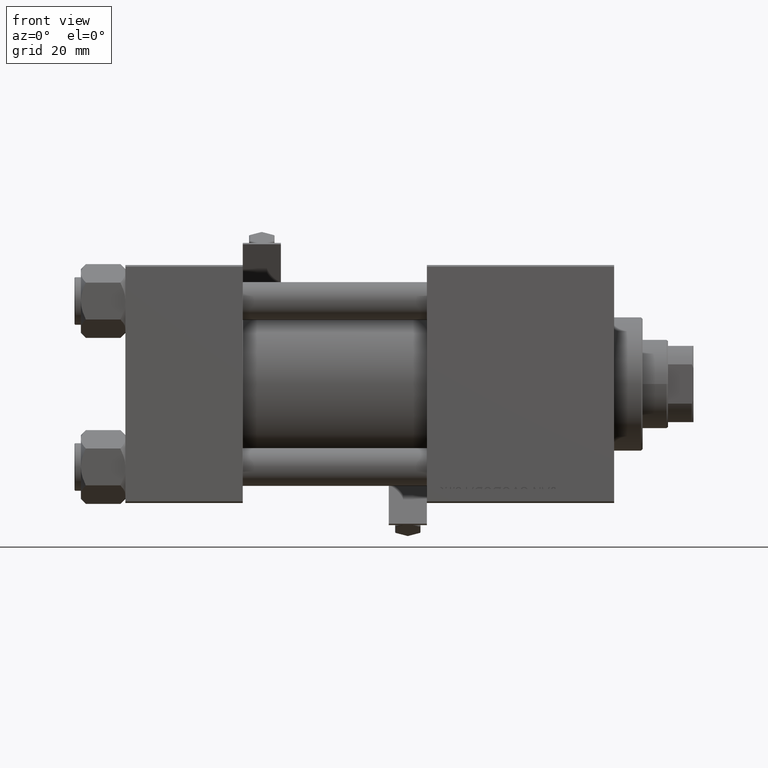
[diagram: clean part render]
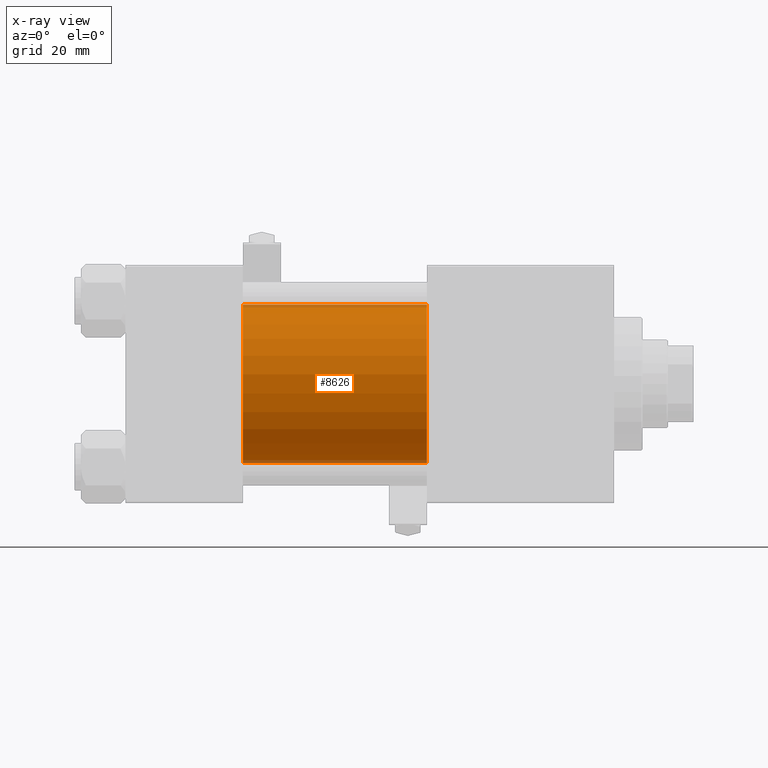
[diagram: x-ray — body ghosted, one internal face saturated and labeled with its STEP entity id]
A machine part, front view, then the same camera in x-ray: the body is ghosted and one INTERNAL B-rep face — a face not visible from any outside direction — is saturated and labeled: STEP entity #8626.
In plain terms, the highlighted cylindrical surface (partial cylindrical patch) has radius 25 mm, axis along (-1, -0, -0).
Its self-contained STEP definition (entity closure, byte-faithful):
#224 = LINE ( 'NONE', #4124, #36709 ) ;
#4124 = CARTESIAN_POINT ( 'NONE',  ( 95.00000000000000000, -2.602085213965210642E-15, 25.00000000000000000 ) ) ;
#5274 = ORIENTED_EDGE ( 'NONE', *, *, #19264, .T. ) ;
#5445 = CIRCLE ( 'NONE', #40195, 25.00000000000000000 ) ;
#7806 = CARTESIAN_POINT ( 'NONE',  ( 95.00000000000000000, 4.595317839031718093E-16, -25.00000000000000000 ) ) ;
#8626 = ADVANCED_FACE ( 'NONE', ( #26311 ), #45995, .F. ) ;
#8649 = DIRECTION ( 'NONE',  ( 0.000000000000000000, 0.000000000000000000, -1.000000000000000000 ) ) ;
#10174 = EDGE_CURVE ( 'NONE', #50802, #10804, #224, .T. ) ;
#10695 = LINE ( 'NONE', #45427, #45863 ) ;
#10755 = DIRECTION ( 'NONE',  ( -1.000000000000000000, -0.000000000000000000, -0.000000000000000000 ) ) ;
#10804 = VERTEX_POINT ( 'NONE', #24914 ) ;
#10886 = DIRECTION ( 'NONE',  ( 1.000000000000000000, 0.000000000000000000, 0.000000000000000000 ) ) ;
#12916 = DIRECTION ( 'NONE',  ( -1.000000000000000000, -0.000000000000000000, -0.000000000000000000 ) ) ;
#14302 = EDGE_CURVE ( 'NONE', #10804, #47182, #34249, .T. ) ;
#14852 = ORIENTED_EDGE ( 'NONE', *, *, #14302, .F. ) ;
#15829 = EDGE_CURVE ( 'NONE', #48265, #47182, #10695, .T. ) ;
#15991 = AXIS2_PLACEMENT_3D ( 'NONE', #25814, #10755, #37713 ) ;
#16048 = AXIS2_PLACEMENT_3D ( 'NONE', #26956, #10886, #18161 ) ;
#18161 = DIRECTION ( 'NONE',  ( 0.000000000000000000, 0.000000000000000000, -1.000000000000000000 ) ) ;
#19264 = EDGE_CURVE ( 'NONE', #50802, #48265, #5445, .T. ) ;
#24914 = CARTESIAN_POINT ( 'NONE',  ( 37.00000000000000000, -2.602085213965210642E-15, 25.00000000000000000 ) ) ;
#25814 = CARTESIAN_POINT ( 'NONE',  ( 95.00000000000000000, -2.602085213965210642E-15, 0.000000000000000000 ) ) ;
#25993 = ORIENTED_EDGE ( 'NONE', *, *, #10174, .F. ) ;
#26311 = FACE_OUTER_BOUND ( 'NONE', #47872, .T. ) ;
#26956 = CARTESIAN_POINT ( 'NONE',  ( 37.00000000000000000, -2.602085213965210642E-15, 0.000000000000000000 ) ) ;
#31972 = CARTESIAN_POINT ( 'NONE',  ( 95.00000000000000000, -2.602085213965210642E-15, 0.000000000000000000 ) ) ;
#33516 = DIRECTION ( 'NONE',  ( -1.000000000000000000, -0.000000000000000000, -0.000000000000000000 ) ) ;
#34249 = CIRCLE ( 'NONE', #16048, 25.00000000000000000 ) ;
#35590 = CARTESIAN_POINT ( 'NONE',  ( 95.00000000000000000, -2.602085213965210642E-15, 25.00000000000000000 ) ) ;
#36709 = VECTOR ( 'NONE', #12916, 1000.000000000000000 ) ;
#37713 = DIRECTION ( 'NONE',  ( 0.000000000000000000, 0.000000000000000000, 1.000000000000000000 ) ) ;
#38068 = ORIENTED_EDGE ( 'NONE', *, *, #15829, .T. ) ;
#40195 = AXIS2_PLACEMENT_3D ( 'NONE', #31972, #43375, #8649 ) ;
#43375 = DIRECTION ( 'NONE',  ( 1.000000000000000000, 0.000000000000000000, 0.000000000000000000 ) ) ;
#45427 = CARTESIAN_POINT ( 'NONE',  ( 95.00000000000000000, 4.595317839031718093E-16, -25.00000000000000000 ) ) ;
#45863 = VECTOR ( 'NONE', #33516, 1000.000000000000000 ) ;
#45995 = CYLINDRICAL_SURFACE ( 'NONE', #15991, 25.00000000000000000 ) ;
#47182 = VERTEX_POINT ( 'NONE', #50374 ) ;
#47872 = EDGE_LOOP ( 'NONE', ( #5274, #38068, #14852, #25993 ) ) ;
#48265 = VERTEX_POINT ( 'NONE', #7806 ) ;
#50374 = CARTESIAN_POINT ( 'NONE',  ( 37.00000000000000000, 4.595317839031718093E-16, -25.00000000000000000 ) ) ;
#50802 = VERTEX_POINT ( 'NONE', #35590 ) ;